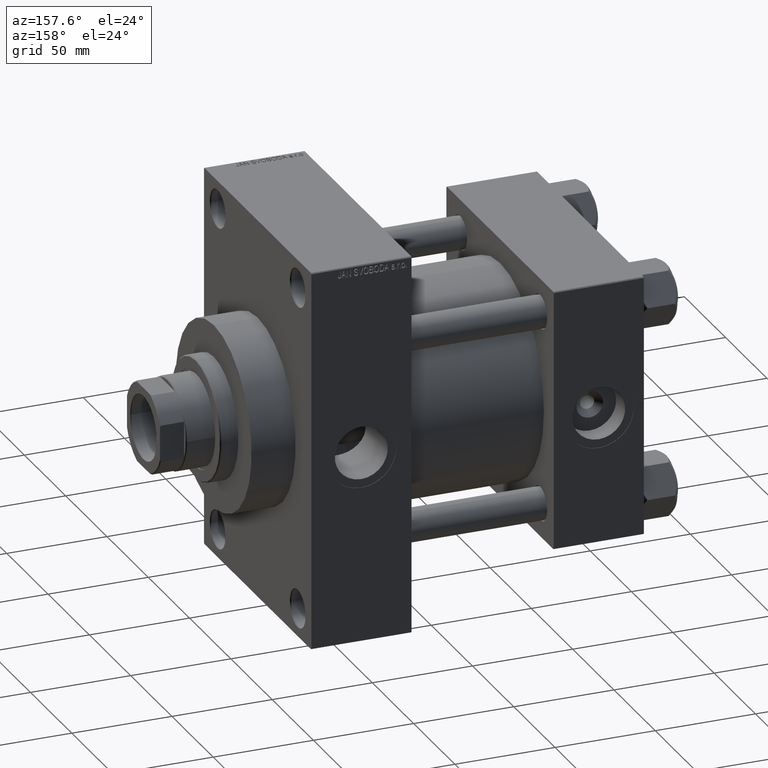
[diagram: clean part render]
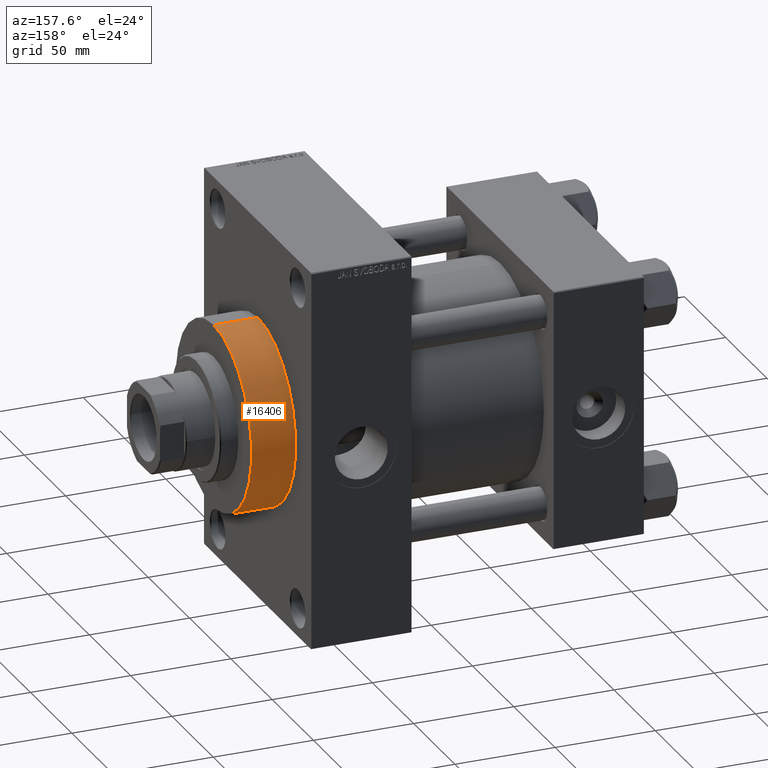
[diagram: same view with one face highlighted and labeled with its STEP entity id]
A machine part, auxiliary view. The second image highlights one B-rep face of the part: STEP entity #16406.
In plain terms, the highlighted cylindrical surface (partial cylindrical patch) has radius 46 mm, axis along (-1, -0, -0).
Its self-contained STEP definition (entity closure, byte-faithful):
#615 = EDGE_CURVE ( 'NONE', #16353, #5073, #22030, .T. ) ;
#946 = CARTESIAN_POINT ( 'NONE',  ( 187.9999999999999716, 5.633375276077824704E-15, -46.00000000000000000 ) ) ;
#1447 = CYLINDRICAL_SURFACE ( 'NONE', #7348, 46.00000000000000000 ) ;
#2293 = AXIS2_PLACEMENT_3D ( 'NONE', #37321, #11108, #29981 ) ;
#4972 = DIRECTION ( 'NONE',  ( -1.000000000000000000, -0.000000000000000000, -0.000000000000000000 ) ) ;
#5073 = VERTEX_POINT ( 'NONE', #43367 ) ;
#5720 = CARTESIAN_POINT ( 'NONE',  ( 187.9999999999999716, 0.000000000000000000, 0.000000000000000000 ) ) ;
#6428 = EDGE_CURVE ( 'NONE', #16353, #45940, #37659, .T. ) ;
#7307 = CIRCLE ( 'NONE', #35439, 46.00000000000000000 ) ;
#7348 = AXIS2_PLACEMENT_3D ( 'NONE', #5720, #4972, #20571 ) ;
#11108 = DIRECTION ( 'NONE',  ( 1.000000000000000000, 0.000000000000000000, 0.000000000000000000 ) ) ;
#13050 = VECTOR ( 'NONE', #28539, 1000.000000000000000 ) ;
#14598 = VERTEX_POINT ( 'NONE', #35862 ) ;
#14623 = LINE ( 'NONE', #32077, #13050 ) ;
#15031 = ORIENTED_EDGE ( 'NONE', *, *, #615, .T. ) ;
#15604 = EDGE_CURVE ( 'NONE', #5073, #14598, #7307, .T. ) ;
#16353 = VERTEX_POINT ( 'NONE', #946 ) ;
#16406 = ADVANCED_FACE ( 'NONE', ( #27617 ), #1447, .T. ) ;
#18167 = VECTOR ( 'NONE', #36915, 1000.000000000000000 ) ;
#18287 = ORIENTED_EDGE ( 'NONE', *, *, #6428, .F. ) ;
#19795 = EDGE_LOOP ( 'NONE', ( #18287, #15031, #25855, #28946 ) ) ;
#20571 = DIRECTION ( 'NONE',  ( 0.000000000000000000, 0.000000000000000000, 1.000000000000000000 ) ) ;
#21286 = CARTESIAN_POINT ( 'NONE',  ( 187.9999999999999716, 5.633375276077824704E-15, -46.00000000000000000 ) ) ;
#22030 = LINE ( 'NONE', #21286, #18167 ) ;
#25855 = ORIENTED_EDGE ( 'NONE', *, *, #15604, .T. ) ;
#27617 = FACE_OUTER_BOUND ( 'NONE', #19795, .T. ) ;
#28225 = EDGE_CURVE ( 'NONE', #45940, #14598, #14623, .T. ) ;
#28539 = DIRECTION ( 'NONE',  ( -1.000000000000000000, -0.000000000000000000, -0.000000000000000000 ) ) ;
#28946 = ORIENTED_EDGE ( 'NONE', *, *, #28225, .F. ) ;
#29981 = DIRECTION ( 'NONE',  ( 0.000000000000000000, 0.000000000000000000, -1.000000000000000000 ) ) ;
#30281 = DIRECTION ( 'NONE',  ( 1.000000000000000000, 0.000000000000000000, 0.000000000000000000 ) ) ;
#32077 = CARTESIAN_POINT ( 'NONE',  ( 187.9999999999999716, 0.000000000000000000, 46.00000000000000000 ) ) ;
#35439 = AXIS2_PLACEMENT_3D ( 'NONE', #45163, #30281, #45657 ) ;
#35862 = CARTESIAN_POINT ( 'NONE',  ( 165.9999999999999716, 0.000000000000000000, 46.00000000000000000 ) ) ;
#36915 = DIRECTION ( 'NONE',  ( -1.000000000000000000, -0.000000000000000000, -0.000000000000000000 ) ) ;
#37321 = CARTESIAN_POINT ( 'NONE',  ( 187.9999999999999716, 0.000000000000000000, 0.000000000000000000 ) ) ;
#37659 = CIRCLE ( 'NONE', #2293, 46.00000000000000000 ) ;
#41275 = CARTESIAN_POINT ( 'NONE',  ( 187.9999999999999716, 0.000000000000000000, 46.00000000000000000 ) ) ;
#43367 = CARTESIAN_POINT ( 'NONE',  ( 165.9999999999999716, 5.633375276077824704E-15, -46.00000000000000000 ) ) ;
#45163 = CARTESIAN_POINT ( 'NONE',  ( 165.9999999999999716, 0.000000000000000000, 0.000000000000000000 ) ) ;
#45657 = DIRECTION ( 'NONE',  ( 0.000000000000000000, 0.000000000000000000, -1.000000000000000000 ) ) ;
#45940 = VERTEX_POINT ( 'NONE', #41275 ) ;